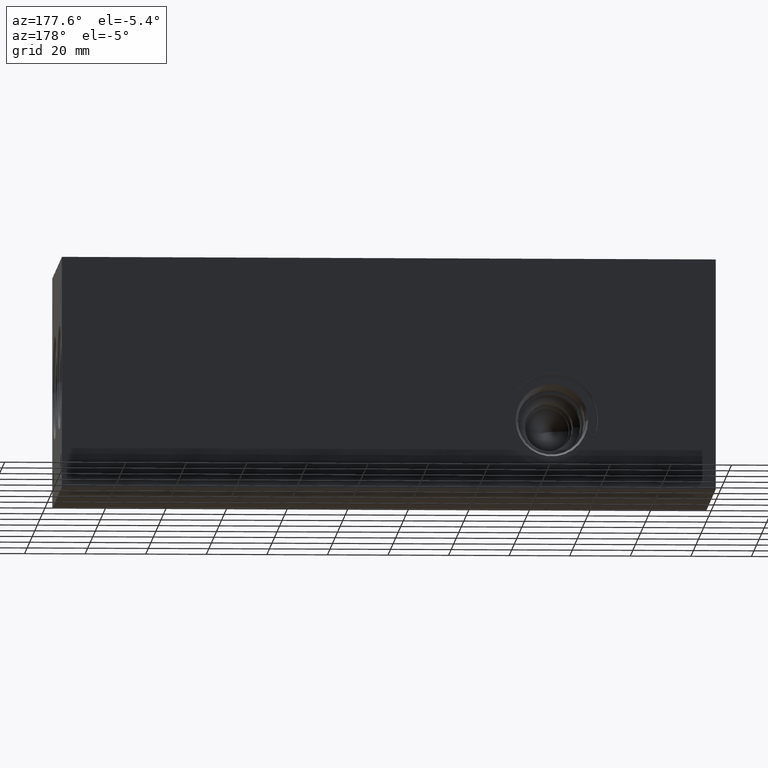
[diagram: clean part render]
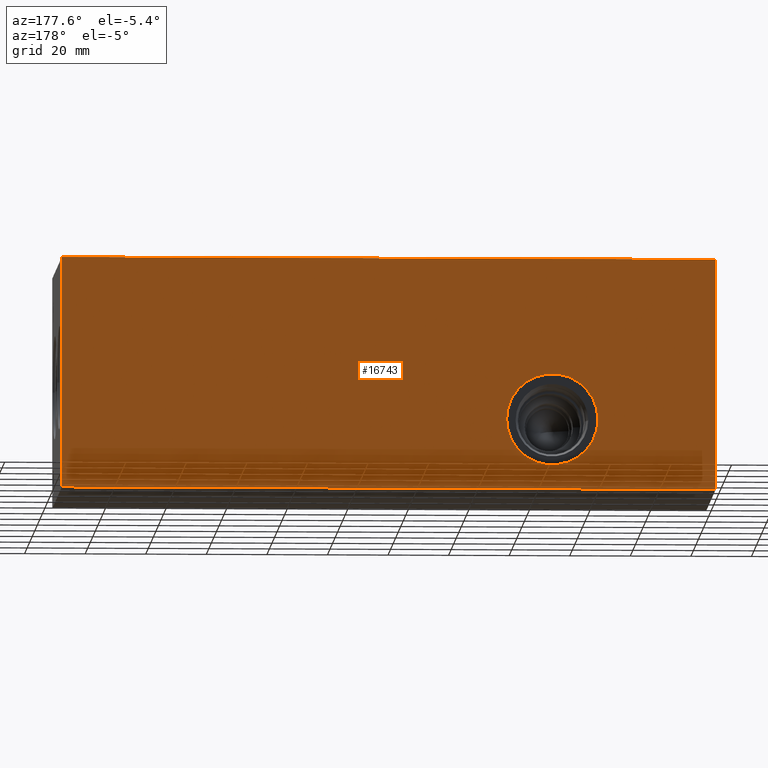
[diagram: same view with one face highlighted and labeled with its STEP entity id]
A machine part, auxiliary view. The second image highlights one B-rep face of the part: STEP entity #16743.
In plain terms, the highlighted planar face has unit normal (0, 1, 0).
Its self-contained STEP definition (entity closure, byte-faithful):
#282=CIRCLE('',#17178,15.08);
#283=CIRCLE('',#17179,15.08);
#866=FACE_BOUND('',#3378,.T.);
#2383=FACE_OUTER_BOUND('',#3377,.T.);
#3377=EDGE_LOOP('',(#14780,#14781,#14782,#14783));
#3378=EDGE_LOOP('',(#14784,#14785));
#4523=LINE('',#27317,#5948);
#4583=LINE('',#27590,#6008);
#4842=LINE('',#29154,#6267);
#4843=LINE('',#29155,#6268);
#5948=VECTOR('',#19776,10.);
#6008=VECTOR('',#19890,10.);
#6267=VECTOR('',#21677,10.);
#6268=VECTOR('',#21678,10.);
#7285=VERTEX_POINT('',#27314);
#7286=VERTEX_POINT('',#27316);
#7343=VERTEX_POINT('',#27586);
#7344=VERTEX_POINT('',#27588);
#7369=VERTEX_POINT('',#27657);
#7370=VERTEX_POINT('',#27658);
#9400=EDGE_CURVE('',#7285,#7286,#4523,.T.);
#9484=EDGE_CURVE('',#7343,#7344,#4583,.T.);
#9517=EDGE_CURVE('',#7369,#7370,#282,.T.);
#9518=EDGE_CURVE('',#7370,#7369,#283,.T.);
#10214=EDGE_CURVE('',#7285,#7343,#4842,.T.);
#10215=EDGE_CURVE('',#7286,#7344,#4843,.T.);
#14780=ORIENTED_EDGE('',*,*,#10214,.T.);
#14781=ORIENTED_EDGE('',*,*,#9484,.T.);
#14782=ORIENTED_EDGE('',*,*,#10215,.F.);
#14783=ORIENTED_EDGE('',*,*,#9400,.F.);
#14784=ORIENTED_EDGE('',*,*,#9517,.T.);
#14785=ORIENTED_EDGE('',*,*,#9518,.T.);
#15306=PLANE('',#17923);
#16743=ADVANCED_FACE('',(#2383,#866),#15306,.T.);
#17178=AXIS2_PLACEMENT_3D('',#27659,#19951,#19952);
#17179=AXIS2_PLACEMENT_3D('',#27660,#19953,#19954);
#17923=AXIS2_PLACEMENT_3D('',#29153,#21675,#21676);
#19776=DIRECTION('',(0.,0.,1.));
#19890=DIRECTION('',(0.,0.,1.));
#19951=DIRECTION('center_axis',(0.,-1.,0.));
#19952=DIRECTION('ref_axis',(1.,0.,0.));
#19953=DIRECTION('center_axis',(0.,-1.,0.));
#19954=DIRECTION('ref_axis',(1.,0.,0.));
#21675=DIRECTION('center_axis',(0.,1.,0.));
#21676=DIRECTION('ref_axis',(-1.,0.,0.));
#21677=DIRECTION('',(-1.,0.,0.));
#21678=DIRECTION('',(-1.,0.,0.));
#27314=CARTESIAN_POINT('',(215.9,76.2,0.));
#27316=CARTESIAN_POINT('',(215.9,76.2,76.2));
#27317=CARTESIAN_POINT('',(215.9,76.2,0.));
#27586=CARTESIAN_POINT('',(0.,76.2,0.));
#27588=CARTESIAN_POINT('',(0.,76.2,76.2));
#27590=CARTESIAN_POINT('',(0.,76.2,0.));
#27657=CARTESIAN_POINT('',(69.055,76.2,23.0124));
#27658=CARTESIAN_POINT('',(38.895,76.2,23.0124));
#27659=CARTESIAN_POINT('Origin',(53.975,76.2,23.0124));
#27660=CARTESIAN_POINT('Origin',(53.975,76.2,23.0124));
#29153=CARTESIAN_POINT('Origin',(215.9,76.2,0.));
#29154=CARTESIAN_POINT('',(215.9,76.2,0.));
#29155=CARTESIAN_POINT('',(215.9,76.2,76.2));